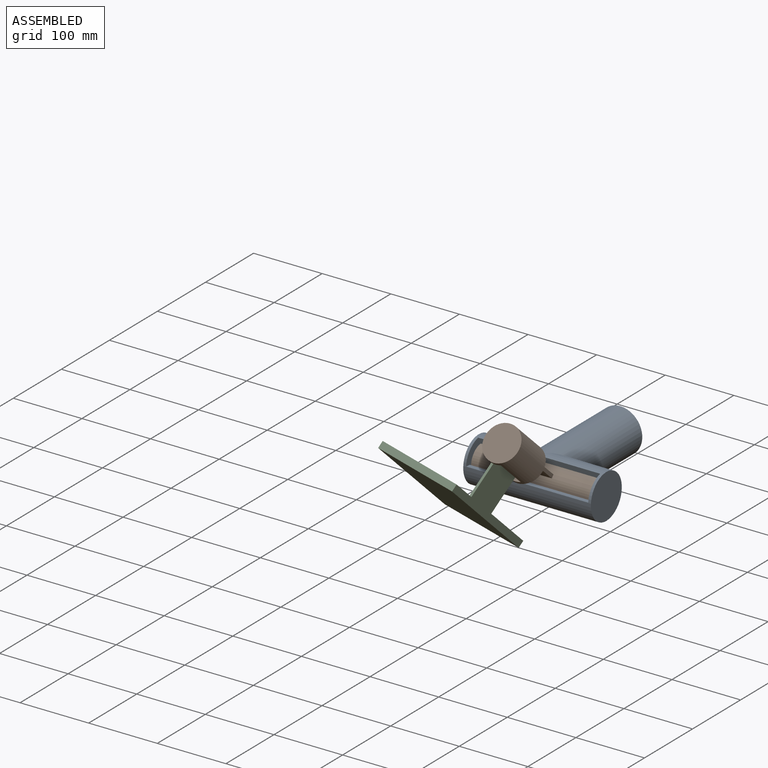
[diagram: assembled view]
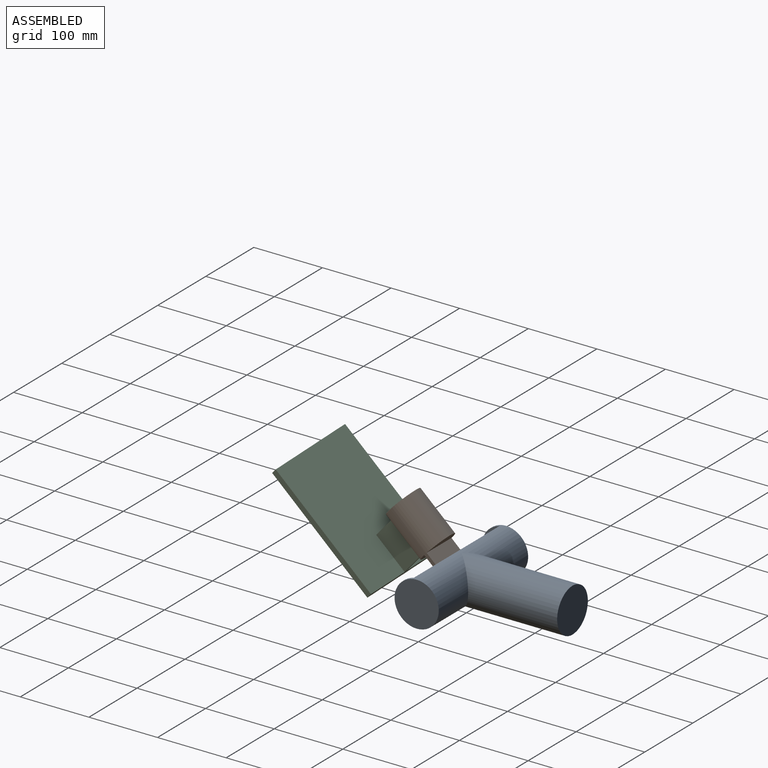
[diagram: assembled view, second angle]
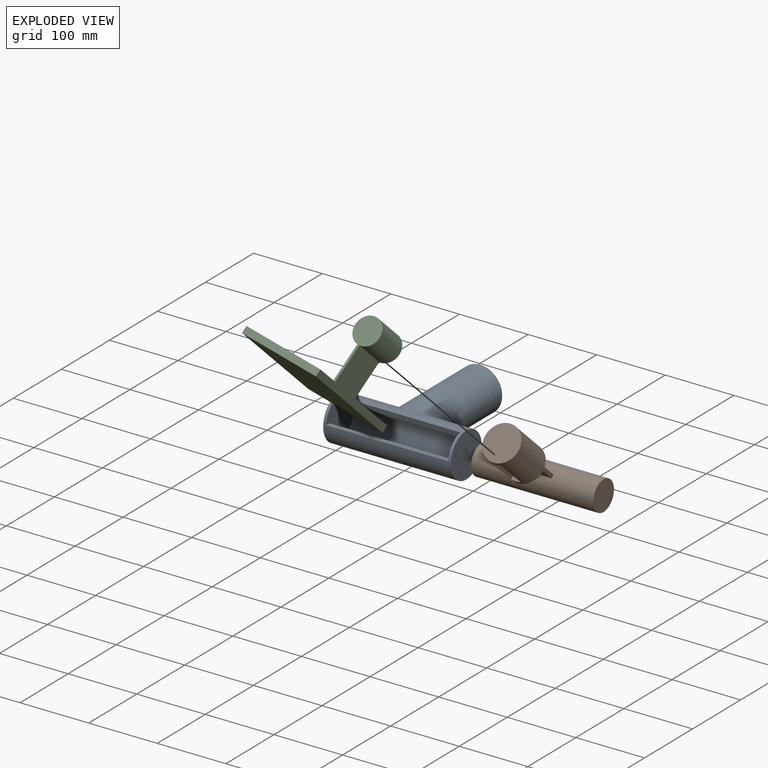
[diagram: exploded view]
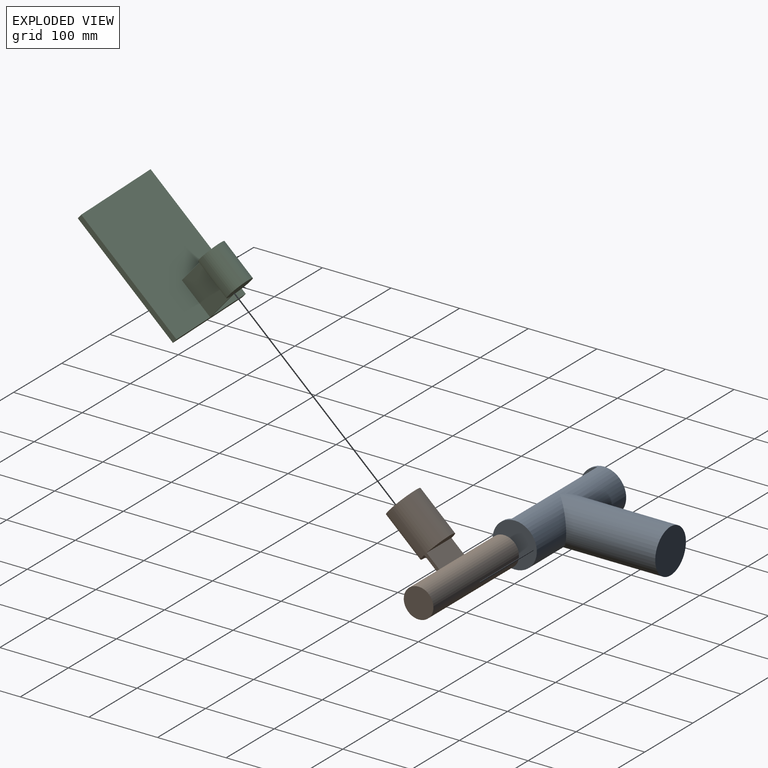
[diagram: exploded view, second angle]
ASSEMBLY  parts=3 mates=2
PART A: 11 faces, bbox 186x194.2x64.5 mm
  f0: plane 178x7.74mm, normal (0,0.1,1), area 1383.4mm2, adj f5,f6,f7,f10
  f1: plane 178x7.59mm, normal (0,-0.98,-0.22), area 1383.4mm2, adj f5,f6,f7,f10
  f2: plane 64.48x64.48mm, normal (1,0,0), area 3265mm2, adj f5
  f3: cylinder r=32.24mm len=162mm, axis (0,1,0), area 14244mm2, adj f4,f5,f9
  f4: plane 64.48x63.95mm, normal (0,1,0), area 3231.2mm2, adj f3,f9
  f5: cylinder r=32.24mm len=186mm, axis (-1,0,0), area 26359.9mm2, adj f0,f1,f2,f3,f7,f8,f9,f10
  f6: cylinder r=24.47mm len=178mm, axis (1,0,0), area 21890.1mm2, adj f0,f1,f7,f10
  f7: plane 56.56x55.93mm, normal (-1,0,0), area 2157.4mm2, adj f0,f1,f5,f6
  f8: plane 64.48x64.48mm, normal (-1,0,0), area 3265mm2, adj f5
  f9: cylinder r=32.24mm len=162mm, axis (0,1,0), area 14244mm2, adj f3,f4,f5
  f10: plane 56.56x55.93mm, normal (1,0,0), area 2157.4mm2, adj f0,f1,f5,f6
PART B: 20 faces, bbox 178x113.7x127.5 mm
  f0: plane 47.42x39.59mm, normal (0.96,-0.22,-0.17), area 343mm2, adj f2,f3,f4,f11
  f1: plane 51.93x40.55mm, normal (0,-0.62,0.78), area 2117.7mm2, adj f2
  f2: cylinder r=25.96mm len=85.85mm, axis (0,0.62,-0.78), area 10342mm2, adj f0,f1,f3,f9,f10,f11,f13,f15
  f3: plane 39.68x35.77mm, normal (0,0.62,-0.78), area 1315.3mm2, adj f0,f2,f4,f15
  f4: cylinder r=19.84mm len=68.05mm, axis (0,0.62,-0.78), area 6360.3mm2, adj f0,f3,f11,f15
  f5: plane 43.25x43.25mm, normal (-1,0,0), area 1468.7mm2, adj f6,f14
  f6: cylinder r=21.63mm len=178mm, axis (1,0,0), area 23265.3mm2, adj f5,f7,f8,f14,f16,f19
  f7: plane 51.67x19.52mm, normal (0,-0.78,-0.62), area 1291.7mm2, adj f6,f9,f12,f17
  f8: plane 51.67x19.52mm, normal (0,0.78,0.62), area 1291.7mm2, adj f6,f10,f12,f17
  f9: plane 51.67x18.26mm, normal (0,0.62,-0.78), area 925mm2, adj f2,f7
  f10: plane 51.67x18.26mm, normal (0,0.62,-0.78), area 925mm2, adj f2,f8
  f11: plane 39.68x35.77mm, normal (0,-0.62,0.78), area 1315.3mm2, adj f0,f2,f4,f15
  f12: plane 22.75x19.65mm, normal (-1,0,0), area 129.1mm2, adj f7,f8,f13,f14
  f13: plane 4.03x3.23mm, normal (0,0.62,-0.78), area 0.4mm2, adj f2,f12
  f14: plane 63.17x4.03mm, normal (0,-0.62,0.78), area 326.2mm2, adj f5,f6,f12
  f15: plane 47.42x39.59mm, normal (-0.96,-0.22,-0.17), area 343mm2, adj f2,f3,f4,f11
  f16: plane 43.25x43.25mm, normal (1,0,0), area 1468.7mm2, adj f6,f19
  f17: plane 22.75x19.65mm, normal (1,0,0), area 129.1mm2, adj f7,f8,f18,f19
  f18: plane 4.03x3.23mm, normal (0,0.62,-0.78), area 0.4mm2, adj f2,f17
  f19: plane 63.17x4.03mm, normal (0,-0.62,0.78), area 326.2mm2, adj f6,f16,f17
PART C: 10 faces, bbox 122.5x203.8x153.2 mm
  f0: plane 122.47x86.27mm, normal (0,0.62,-0.78), area 2668.1mm2, adj f1,f3,f4,f5,f7,f8,f9
  f1: plane 153.19x125.36mm, normal (1,0,0), area 1881.8mm2, adj f0,f2,f3,f4
  f2: plane 122.47x7.81mm, normal (0,-0.62,0.78), area 1224.7mm2, adj f1,f3,f4,f8
  f3: plane 146.95x122.47mm, normal (0,-0.78,-0.62), area 23046.9mm2, adj f0,f1,f2,f8
  f4: plane 146.95x122.47mm, normal (0,0.78,0.62), area 22856.4mm2, adj f0,f1,f2,f5,f6,f8,f9
  f5: plane 82.53x81.77mm, normal (1,0,0), area 3410.2mm2, adj f0,f4,f6,f7
  f6: plane 78.46x62.77mm, normal (0,-0.62,0.78), area 1443.4mm2, adj f4,f5,f7,f9
  f7: cylinder r=19.84mm len=68.49mm, axis (0,0.62,-0.78), area 6793.2mm2, adj f0,f5,f6,f9
  f8: plane 153.19x125.36mm, normal (-1,0,0), area 1881.8mm2, adj f0,f2,f3,f4
  f9: plane 82.53x81.77mm, normal (-1,0,0), area 3410.2mm2, adj f0,f4,f6,f7
PLACE A t=(-95.71,57.71,-57.65)mm fixed
PLACE B rot(axis=(1,0,0),8.8deg) t=(-95.71,55.75,-32.77)mm
PLACE C rot(axis=(0.59,0.55,-0.59),14.9deg) t=(-69.37,52.96,-35.81)mm
MATE revolute B.f6 <-> A.f5  axis (-1,0,0) through (-184.71,-104.29,-57.91)mm
MATE revolute C.f7 <-> B.f11  axis (0,0.74,-0.68) through (-95.71,-144.03,-23.33)mm
